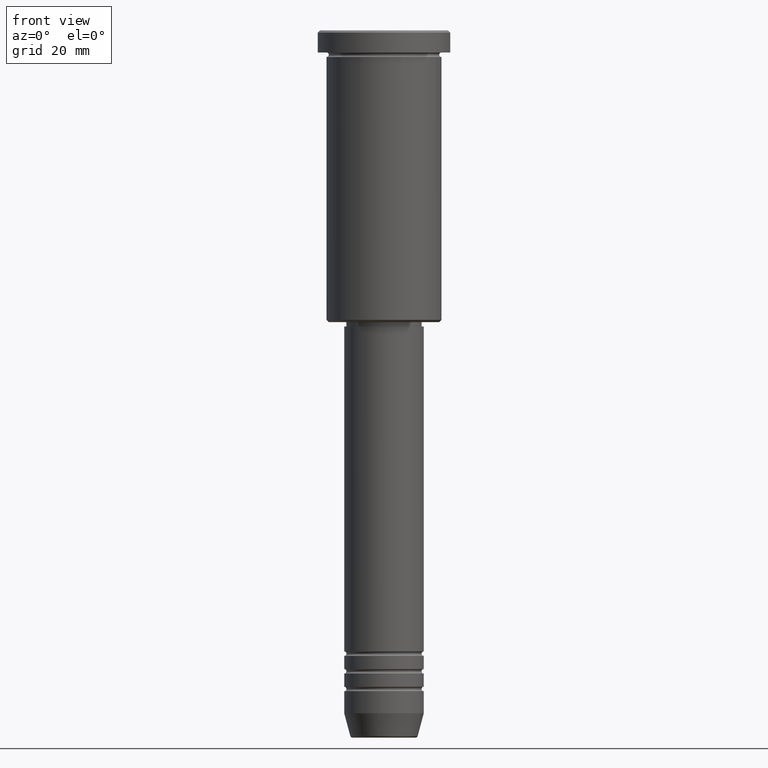
[diagram: clean part render]
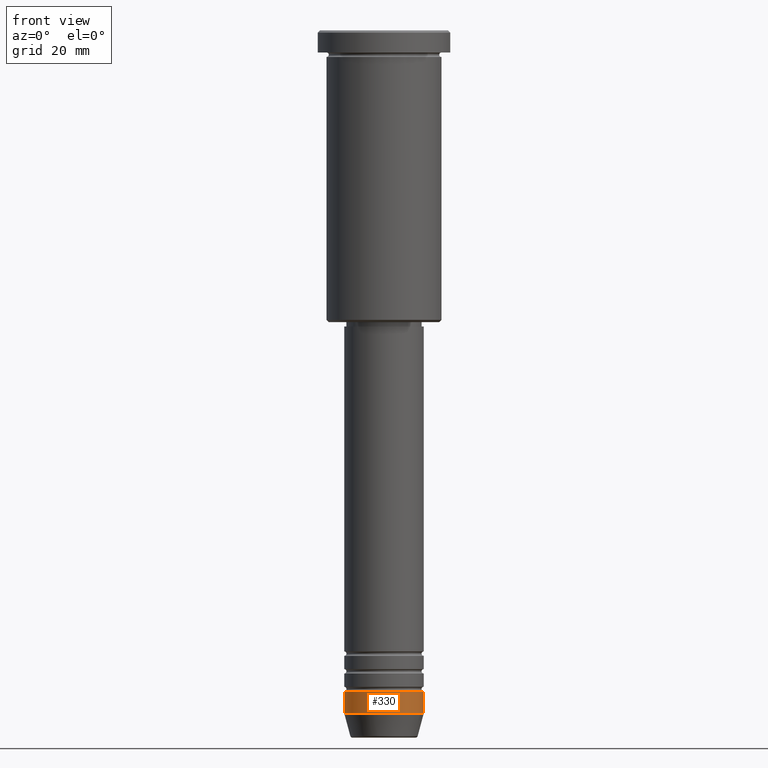
[diagram: same view with one face highlighted and labeled with its STEP entity id]
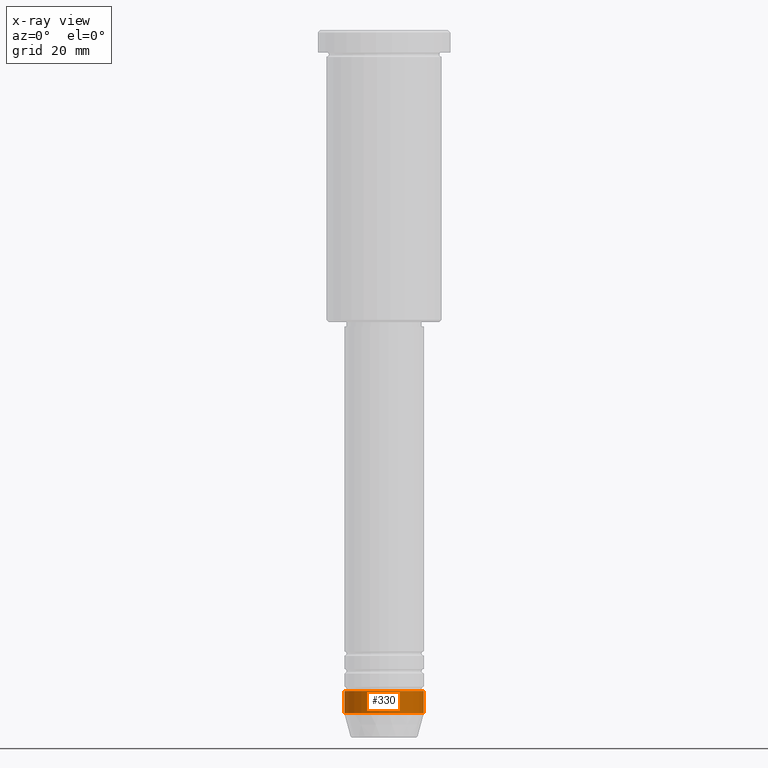
[diagram: x-ray of the same camera — body ghosted, the highlighted face saturated]
A machine part, front view. The second image highlights one B-rep face of the part: STEP entity #330.
The next image is the same camera in x-ray: the body ghosted, the highlighted face saturated — about 0% of this face is hidden behind the body in this view.
In plain terms, the highlighted cylindrical surface (partial cylindrical patch) has radius 9 mm, axis along (-0, -0, 1).
Its self-contained STEP definition (entity closure, byte-faithful):
#11 = VERTEX_POINT ( 'NONE', #1142 ) ;
#17 = LINE ( 'NONE', #777, #612 ) ;
#68 = DIRECTION ( 'NONE',  ( 1.000000000000000000, 0.000000000000000000, 0.000000000000000000 ) ) ;
#106 = VERTEX_POINT ( 'NONE', #1150 ) ;
#159 = CARTESIAN_POINT ( 'NONE',  ( -9.000000000000000000, 1.102182119232617714E-15, -149.5000000000000000 ) ) ;
#160 = EDGE_CURVE ( 'NONE', #11, #482, #353, .T. ) ;
#172 = AXIS2_PLACEMENT_3D ( 'NONE', #671, #570, #1121 ) ;
#173 = DIRECTION ( 'NONE',  ( -0.000000000000000000, -0.000000000000000000, 1.000000000000000000 ) ) ;
#190 = CYLINDRICAL_SURFACE ( 'NONE', #172, 9.000000000000001776 ) ;
#200 = ORIENTED_EDGE ( 'NONE', *, *, #608, .T. ) ;
#212 = DIRECTION ( 'NONE',  ( -0.000000000000000000, -0.000000000000000000, 1.000000000000000000 ) ) ;
#229 = EDGE_CURVE ( 'NONE', #482, #578, #404, .T. ) ;
#330 = ADVANCED_FACE ( 'NONE', ( #967 ), #190, .T. ) ;
#353 = LINE ( 'NONE', #543, #943 ) ;
#363 = ORIENTED_EDGE ( 'NONE', *, *, #229, .F. ) ;
#404 = CIRCLE ( 'NONE', #1120, 9.000000000000000000 ) ;
#482 = VERTEX_POINT ( 'NONE', #159 ) ;
#507 = CIRCLE ( 'NONE', #824, 9.000000000000001776 ) ;
#543 = CARTESIAN_POINT ( 'NONE',  ( -9.000000000000001776, 1.102182119232617911E-15, 0.000000000000000000 ) ) ;
#570 = DIRECTION ( 'NONE',  ( -0.000000000000000000, -0.000000000000000000, 1.000000000000000000 ) ) ;
#578 = VERTEX_POINT ( 'NONE', #875 ) ;
#608 = EDGE_CURVE ( 'NONE', #11, #106, #507, .T. ) ;
#612 = VECTOR ( 'NONE', #212, 1000.000000000000000 ) ;
#643 = DIRECTION ( 'NONE',  ( -0.000000000000000000, -0.000000000000000000, 1.000000000000000000 ) ) ;
#671 = CARTESIAN_POINT ( 'NONE',  ( 0.000000000000000000, 0.000000000000000000, 0.000000000000000000 ) ) ;
#777 = CARTESIAN_POINT ( 'NONE',  ( 9.000000000000001776, 0.000000000000000000, 0.000000000000000000 ) ) ;
#785 = ORIENTED_EDGE ( 'NONE', *, *, #853, .T. ) ;
#824 = AXIS2_PLACEMENT_3D ( 'NONE', #910, #1013, #1087 ) ;
#853 = EDGE_CURVE ( 'NONE', #106, #578, #17, .T. ) ;
#875 = CARTESIAN_POINT ( 'NONE',  ( 9.000000000000000000, 0.000000000000000000, -149.5000000000000000 ) ) ;
#910 = CARTESIAN_POINT ( 'NONE',  ( 0.000000000000000000, 0.000000000000000000, -154.5000000000000000 ) ) ;
#943 = VECTOR ( 'NONE', #173, 1000.000000000000000 ) ;
#967 = FACE_OUTER_BOUND ( 'NONE', #1103, .T. ) ;
#1013 = DIRECTION ( 'NONE',  ( -0.000000000000000000, -0.000000000000000000, 1.000000000000000000 ) ) ;
#1078 = CARTESIAN_POINT ( 'NONE',  ( 0.000000000000000000, 0.000000000000000000, -149.5000000000000000 ) ) ;
#1087 = DIRECTION ( 'NONE',  ( 1.000000000000000000, 0.000000000000000000, 0.000000000000000000 ) ) ;
#1088 = ORIENTED_EDGE ( 'NONE', *, *, #160, .F. ) ;
#1103 = EDGE_LOOP ( 'NONE', ( #1088, #200, #785, #363 ) ) ;
#1120 = AXIS2_PLACEMENT_3D ( 'NONE', #1078, #643, #68 ) ;
#1121 = DIRECTION ( 'NONE',  ( 1.000000000000000000, 0.000000000000000000, 0.000000000000000000 ) ) ;
#1142 = CARTESIAN_POINT ( 'NONE',  ( -9.000000000000001776, 1.102182119232617911E-15, -154.5000000000000000 ) ) ;
#1150 = CARTESIAN_POINT ( 'NONE',  ( 9.000000000000001776, 0.000000000000000000, -154.5000000000000000 ) ) ;